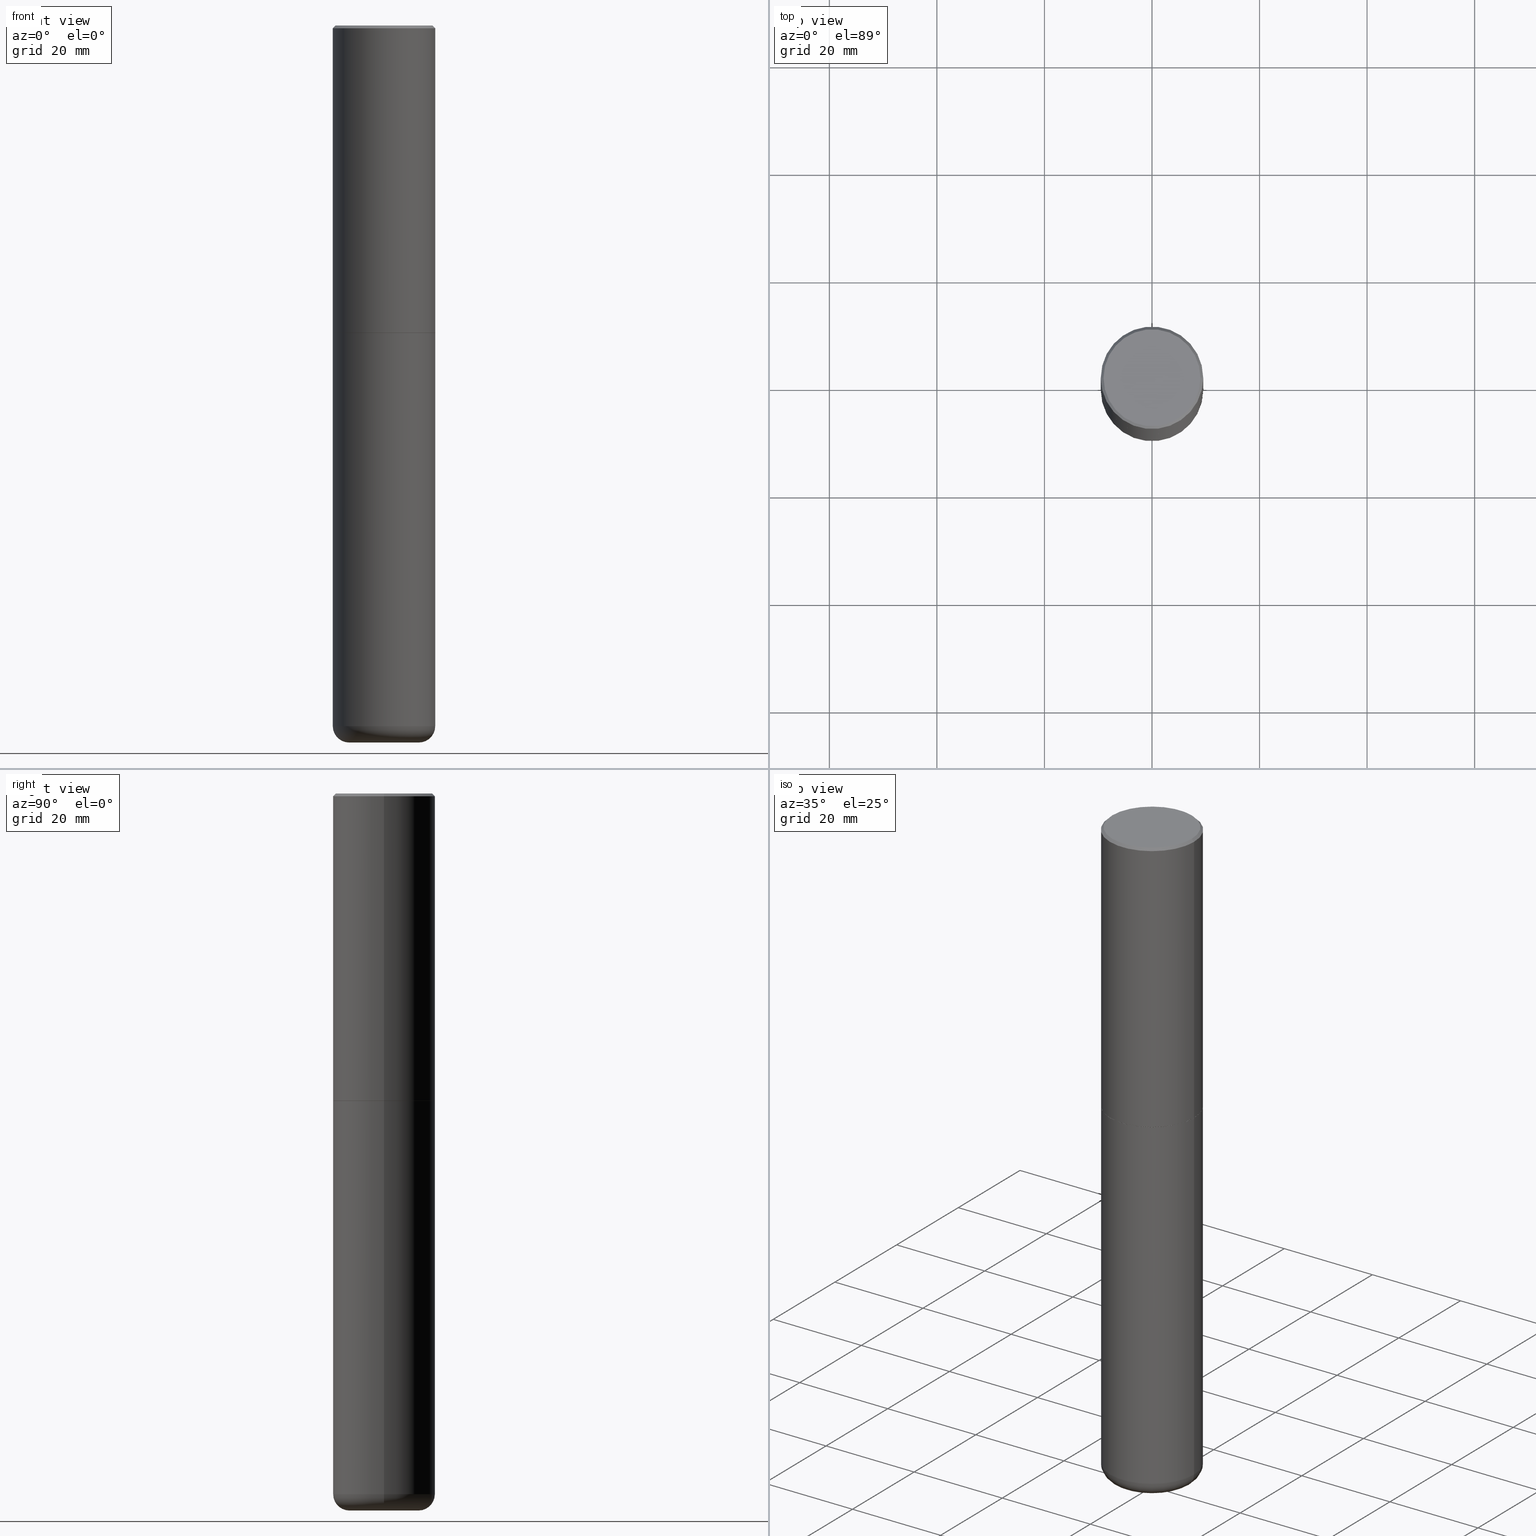
[diagram: canonical four-view strip — front | top / right | iso, engineering-drawing reading convention]
A machine part, canonical four-view strip (front | top / right | iso — engineering-drawing reading convention). The complete STEP part file that produces these views, byte-faithful:
ISO-10303-21;
HEADER;
FILE_DESCRIPTION (( 'STEP AP203' ),
    '1' );
FILE_NAME ('77291.STEP',
    '2024-03-06T16:54:14',
    ( '' ),
    ( '' ),
    'SwSTEP 2.0',
    'SolidWorks 2023',
    '' );
FILE_SCHEMA (( 'CONFIG_CONTROL_DESIGN' ));
ENDSEC;

DATA;
#1 = AXIS2_PLACEMENT_3D ( 'NONE', #104, #31, #357 ) ;
#2 = DIRECTION ( 'NONE',  ( -2.445468806185136597E-29, 3.491481338843145583E-15, 1.000000000000000000 ) ) ;
#3 = CYLINDRICAL_SURFACE ( 'NONE', #14, 0.3750000000000000555 ) ;
#4 = EDGE_CURVE ( 'NONE', #42, #363, #258, .T. ) ;
#5 = CARTESIAN_POINT ( 'NONE',  ( 1.254525497572975083E-28, -1.791129926826533659E-14, -5.129999999999999893 ) ) ;
#6 = ORIENTED_EDGE ( 'NONE', *, *, #225, .F. ) ;
#7 = CIRCLE ( 'NONE', #214, 0.3750000000000001110 ) ;
#8 = EDGE_LOOP ( 'NONE', ( #309, #396, #193, #176 ) ) ;
#9 = EDGE_CURVE ( 'NONE', #363, #81, #156, .T. ) ;
#10 = ORIENTED_EDGE ( 'NONE', *, *, #271, .T. ) ;
#11 = APPROVAL ( #242, 'UNSPECIFIED' ) ;
#12 = CIRCLE ( 'NONE', #119, 0.3549999999999999822 ) ;
#13 = EDGE_LOOP ( 'NONE', ( #304, #316, #275, #41 ) ) ;
#14 = AXIS2_PLACEMENT_3D ( 'NONE', #273, #391, #105 ) ;
#15 = EDGE_CURVE ( 'NONE', #289, #409, #113, .T. ) ;
#16 = DIRECTION ( 'NONE',  ( -2.445468806185136597E-29, 3.491481338843145583E-15, 1.000000000000000000 ) ) ;
#17 = DIRECTION ( 'NONE',  ( 7.105427357601001859E-15, 1.000000000000000000, -3.491481338843145583E-15 ) ) ;
#18 = EDGE_LOOP ( 'NONE', ( #244, #162, #75, #336 ) ) ;
#19 = VECTOR ( 'NONE', #87, 39.37007874015748143 ) ;
#20 = EDGE_CURVE ( 'NONE', #45, #241, #413, .T. ) ;
#21 = TOROIDAL_SURFACE ( 'NONE', #360, 0.2550000000000000044, 0.1199999999999993711 ) ;
#22 = APPROVAL_ROLE ( '' ) ;
#23 = DIRECTION ( 'NONE',  ( -2.445468806185136597E-29, 3.491481338843145583E-15, 1.000000000000000000 ) ) ;
#24 = CYLINDRICAL_SURFACE ( 'NONE', #388, 0.3750000000000002220 ) ;
#25 = ORIENTED_EDGE ( 'NONE', *, *, #280, .F. ) ;
#26 = LENGTH_MEASURE_WITH_UNIT ( LENGTH_MEASURE( 0.02539999999999999897 ), #30 );
#27 = CARTESIAN_POINT ( 'NONE',  ( -0.3750000000000000555, 2.664535259100376091E-15, -1.844600658845589598E-29 ) ) ;
#28 = FACE_OUTER_BOUND ( 'NONE', #77, .T. ) ;
#29 = SECURITY_CLASSIFICATION ( '', '', #158 ) ;
#30 =( LENGTH_UNIT ( ) NAMED_UNIT ( * ) SI_UNIT ( $, .METRE. ) );
#31 = DIRECTION ( 'NONE',  ( -2.445468806185136597E-29, 3.491481338843145583E-15, 1.000000000000000000 ) ) ;
#32 =( NAMED_UNIT ( * ) SI_UNIT ( $, .STERADIAN. ) SOLID_ANGLE_UNIT ( ) );
#33 = CYLINDRICAL_SURFACE ( 'NONE', #39, 0.3750000000000002220 ) ;
#34 = CARTESIAN_POINT ( 'NONE',  ( 4.890937612370294178E-31, -6.982962677686321191E-17, -0.02000000000000008715 ) ) ;
#35 = EDGE_CURVE ( 'NONE', #117, #243, #207, .T. ) ;
#36 = FACE_OUTER_BOUND ( 'NONE', #181, .T. ) ;
#37 = FACE_OUTER_BOUND ( 'NONE', #281, .T. ) ;
#38 = VERTEX_POINT ( 'NONE', #223 ) ;
#39 = AXIS2_PLACEMENT_3D ( 'NONE', #170, #103, #237 ) ;
#40 = APPROVAL ( #61, 'UNSPECIFIED' ) ;
#41 = ORIENTED_EDGE ( 'NONE', *, *, #102, .F. ) ;
#42 = VERTEX_POINT ( 'NONE', #226 ) ;
#43 = EDGE_LOOP ( 'NONE', ( #369, #245 ) ) ;
#44 = EDGE_CURVE ( 'NONE', #306, #81, #92, .T. ) ;
#45 = VERTEX_POINT ( 'NONE', #317 ) ;
#46 = AXIS2_PLACEMENT_3D ( 'NONE', #88, #381, #93 ) ;
#47 = LINE ( 'NONE', #283, #19 ) ;
#48 = CARTESIAN_POINT ( 'NONE',  ( 0.3739999999999999991, -1.046746105385174245E-14, -2.250000000000000444 ) ) ;
#49 = EDGE_CURVE ( 'NONE', #243, #287, #263, .T. ) ;
#50 = CARTESIAN_POINT ( 'NONE',  ( 1.283871123247196489E-28, -1.833027702892651007E-14, -5.249999999999999112 ) ) ;
#51 = PERSON_AND_ORGANIZATION ( #150, #138 ) ;
#52 = ORIENTED_EDGE ( 'NONE', *, *, #271, .F. ) ;
#53 = CIRCLE ( 'NONE', #311, 0.1199999999999993988 ) ;
#54 = CC_DESIGN_DATE_AND_TIME_ASSIGNMENT ( #98, #196, ( #239 ) ) ;
#55 = DIRECTION ( 'NONE',  ( 1.000000000000000000, -6.982962677686260400E-15, 0.000000000000000000 ) ) ;
#56 = CIRCLE ( 'NONE', #101, 0.2550000000000000044 ) ;
#57 = DIRECTION ( 'NONE',  ( -2.445468806185136597E-29, 3.491481338843145583E-15, 1.000000000000000000 ) ) ;
#58 = ORIENTED_EDGE ( 'NONE', *, *, #4, .T. ) ;
#59 =( CONVERSION_BASED_UNIT ( 'INCH', #26 ) LENGTH_UNIT ( ) NAMED_UNIT ( #142 ) );
#60 = CARTESIAN_POINT ( 'NONE',  ( 4.890937612370294178E-31, -6.982962677686321191E-17, -0.02000000000000008715 ) ) ;
#61 = APPROVAL_STATUS ( 'not_yet_approved' ) ;
#62 = DIRECTION ( 'NONE',  ( 1.000000000000000000, -6.982962677686260400E-15, 0.000000000000000000 ) ) ;
#63 = CLOSED_SHELL ( 'NONE', ( #407, #191, #365, #348, #379, #355 ) ) ;
#64 = APPROVAL_PERSON_ORGANIZATION ( #144, #11, #274 ) ;
#65 = CALENDAR_DATE ( 2024, 6, 3 ) ;
#66 = CARTESIAN_POINT ( 'NONE',  ( -0.3749999999999996669, -1.524676400916496405E-14, -5.129999999999999893 ) ) ;
#67 = CARTESIAN_POINT ( 'NONE',  ( 0.3750000000000000555, -2.618611004132350016E-15, 1.828566290923476203E-29 ) ) ;
#68 = FACE_OUTER_BOUND ( 'NONE', #368, .T. ) ;
#69 = ADVANCED_FACE ( 'NONE', ( #346 ), #290, .T. ) ;
#70 = PLANE ( 'NONE',  #268 ) ;
#71 = DIRECTION ( 'NONE',  ( 2.438088387897960049E-29, -3.491481338843145188E-15, -1.000000000000000000 ) ) ;
#72 = AXIS2_PLACEMENT_3D ( 'NONE', #34, #293, #383 ) ;
#73 = AXIS2_PLACEMENT_3D ( 'NONE', #288, #169, #227 ) ;
#74 = ORIENTED_EDGE ( 'NONE', *, *, #397, .F. ) ;
#75 = ORIENTED_EDGE ( 'NONE', *, *, #321, .T. ) ;
#76 = MANIFOLD_SOLID_BREP ( 'Body-Move/Copy2[1]', #63 ) ;
#77 = EDGE_LOOP ( 'NONE', ( #184, #406, #79, #333 ) ) ;
#78 = VECTOR ( 'NONE', #343, 39.37007874015748854 ) ;
#79 = ORIENTED_EDGE ( 'NONE', *, *, #280, .T. ) ;
#80 = ORIENTED_EDGE ( 'NONE', *, *, #321, .F. ) ;
#81 = VERTEX_POINT ( 'NONE', #340 ) ;
#82 = CONICAL_SURFACE ( 'NONE', #325, 0.3750000000000001110, 0.7853981633974477239 ) ;
#83 = CIRCLE ( 'NONE', #72, 0.3750000000000001110 ) ;
#84 = DIRECTION ( 'NONE',  ( -2.445468806185136597E-29, 3.491481338843145583E-15, 1.000000000000000000 ) ) ;
#85 = AXIS2_PLACEMENT_3D ( 'NONE', #106, #328, #295 ) ;
#86 = EDGE_CURVE ( 'NONE', #241, #45, #12, .T. ) ;
#87 = DIRECTION ( 'NONE',  ( -2.445468806185136877E-29, 3.491481338843145188E-15, 1.000000000000000000 ) ) ;
#88 = CARTESIAN_POINT ( 'NONE',  ( 0.000000000000000000, 0.000000000000000000, 0.000000000000000000 ) ) ;
#89 = PERSON_AND_ORGANIZATION ( #150, #138 ) ;
#90 = ORIENTED_EDGE ( 'NONE', *, *, #15, .T. ) ;
#91 = DATE_AND_TIME ( #378, #373 ) ;
#92 = LINE ( 'NONE', #374, #78 ) ;
#93 = DIRECTION ( 'NONE',  ( 1.000000000000000000, -6.982962677686265922E-15, 4.876176775795935793E-29 ) ) ;
#94 = APPLICATION_PROTOCOL_DEFINITION ( 'international standard', 'config_control_design', 1994, #236 ) ;
#95 = DIRECTION ( 'NONE',  ( 1.000000000000000000, -6.982962677686265922E-15, 4.876176775795935793E-29 ) ) ;
#96 = LINE ( 'NONE', #194, #209 ) ;
#97 = EDGE_CURVE ( 'NONE', #38, #159, #7, .T. ) ;
#98 = DATE_AND_TIME ( #384, #394 ) ;
#99 = DATE_AND_TIME ( #224, #109 ) ;
#100 = AXIS2_PLACEMENT_3D ( 'NONE', #370, #260, #314 ) ;
#101 = AXIS2_PLACEMENT_3D ( 'NONE', #344, #372, #55 ) ;
#102 = EDGE_CURVE ( 'NONE', #81, #159, #47, .T. ) ;
#103 = DIRECTION ( 'NONE',  ( -2.445468806185136597E-29, 3.491481338843145583E-15, 1.000000000000000000 ) ) ;
#104 = CARTESIAN_POINT ( 'NONE',  ( 1.254525497572975083E-28, -1.791129926826533659E-14, -5.129999999999999893 ) ) ;
#105 = DIRECTION ( 'NONE',  ( 1.000000000000000000, -6.982962677686265922E-15, 4.876176775795935793E-29 ) ) ;
#106 = CARTESIAN_POINT ( 'NONE',  ( 5.502304813916557343E-29, -7.855833012397078448E-15, -2.250000000000000000 ) ) ;
#107 = AXIS2_PLACEMENT_3D ( 'NONE', #352, #132, #272 ) ;
#108 = APPROVAL_DATE_TIME ( #393, #11 ) ;
#109 = LOCAL_TIME ( 11, 54, 14.00000000000000000, #296 ) ;
#110 = ORIENTED_EDGE ( 'NONE', *, *, #298, .F. ) ;
#111 = ORIENTED_EDGE ( 'NONE', *, *, #335, .T. ) ;
#112 = ORIENTED_EDGE ( 'NONE', *, *, #291, .T. ) ;
#113 = CIRCLE ( 'NONE', #220, 0.3750000000000000555 ) ;
#114 = EDGE_CURVE ( 'NONE', #117, #116, #137, .T. ) ;
#115 =( GEOMETRIC_REPRESENTATION_CONTEXT ( 3 ) GLOBAL_UNCERTAINTY_ASSIGNED_CONTEXT ( ( #270 ) ) GLOBAL_UNIT_ASSIGNED_CONTEXT ( ( #59, #124, #32 ) ) REPRESENTATION_CONTEXT ( 'NONE', 'WORKASPACE' ) );
#116 = VERTEX_POINT ( 'NONE', #265 ) ;
#117 = VERTEX_POINT ( 'NONE', #164 ) ;
#118 = CARTESIAN_POINT ( 'NONE',  ( 4.890937612370294178E-31, -6.982962677686321191E-17, -0.02000000000000008715 ) ) ;
#119 = AXIS2_PLACEMENT_3D ( 'NONE', #157, #84, #401 ) ;
#120 = PRODUCT_DEFINITION_FORMATION_WITH_SPECIFIED_SOURCE ( 'ANY', '', #252, .NOT_KNOWN. ) ;
#121 = DIRECTION ( 'NONE',  ( -2.445468806185136597E-29, 3.491481338843145583E-15, 1.000000000000000000 ) ) ;
#122 = DIRECTION ( 'NONE',  ( 1.000000000000000000, -6.982962677686266711E-15, 4.876176775795935793E-29 ) ) ;
#123 = CARTESIAN_POINT ( 'NONE',  ( 5.499859345110371740E-29, -7.852341531058233864E-15, -2.249000000000000110 ) ) ;
#124 =( NAMED_UNIT ( * ) PLANE_ANGLE_UNIT ( ) SI_UNIT ( $, .RADIAN. ) );
#125 = DIRECTION ( 'NONE',  ( 1.000000000000000000, -6.982962677686267499E-15, 0.000000000000000000 ) ) ;
#126 = CYLINDRICAL_SURFACE ( 'NONE', #46, 0.3750000000000000555 ) ;
#127 = ADVANCED_FACE ( 'NONE', ( #36 ), #178, .T. ) ;
#128 = FACE_OUTER_BOUND ( 'NONE', #18, .T. ) ;
#129 = CIRCLE ( 'NONE', #189, 0.3750000000000002776 ) ;
#130 = PERSON_AND_ORGANIZATION ( #150, #138 ) ;
#131 = DIRECTION ( 'NONE',  ( -2.445468806185136597E-29, 3.491481338843145583E-15, 1.000000000000000000 ) ) ;
#132 = DIRECTION ( 'NONE',  ( 2.445468806185136597E-29, -3.491481338843145583E-15, -1.000000000000000000 ) ) ;
#133 = DIRECTION ( 'NONE',  ( -2.445468806185136597E-29, 3.491481338843145583E-15, 1.000000000000000000 ) ) ;
#134 = EDGE_CURVE ( 'NONE', #159, #38, #83, .T. ) ;
#135 = COORDINATED_UNIVERSAL_TIME_OFFSET ( 5, 0, .BEHIND. ) ;
#136 = DIRECTION ( 'NONE',  ( -2.438088387897960049E-29, 3.491481338843145188E-15, 1.000000000000000000 ) ) ;
#137 = CIRCLE ( 'NONE', #326, 0.2550000000000000044 ) ;
#138 = ORGANIZATION ( 'UNSPECIFIED', 'UNSPECIFIED', '' ) ;
#139 = CALENDAR_DATE ( 2024, 6, 3 ) ;
#140 = LINE ( 'NONE', #411, #165 ) ;
#141 = CARTESIAN_POINT ( 'NONE',  ( 1.254525497572975083E-28, -1.791129926826533659E-14, -5.129999999999999893 ) ) ;
#142 = DIMENSIONAL_EXPONENTS ( 1.000000000000000000, 0.000000000000000000, 0.000000000000000000, 0.000000000000000000, 0.000000000000000000, 0.000000000000000000, 0.000000000000000000 ) ;
#143 = AXIS2_PLACEMENT_3D ( 'NONE', #285, #17, #153 ) ;
#144 = PERSON_AND_ORGANIZATION ( #150, #138 ) ;
#145 = APPROVAL_PERSON_ORGANIZATION ( #415, #161, #163 ) ;
#146 = ORIENTED_EDGE ( 'NONE', *, *, #86, .F. ) ;
#147 = EDGE_LOOP ( 'NONE', ( #112, #218, #334, #25 ) ) ;
#148 = ADVANCED_FACE ( 'NONE', ( #68 ), #70, .F. ) ;
#149 = ORIENTED_EDGE ( 'NONE', *, *, #291, .F. ) ;
#150 = PERSON ( 'UNSPECIFIED', 'UNSPECIFIED', 'UNSPECIFIED', ('UNSPECIFIED'), ('UNSPECIFIED'), ('UNSPECIFIED') ) ;
#151 = AXIS2_PLACEMENT_3D ( 'NONE', #417, #267, #389 ) ;
#152 = APPROVAL_PERSON_ORGANIZATION ( #233, #40, #22 ) ;
#153 = DIRECTION ( 'NONE',  ( -1.000000000000000000, 7.105427357600993970E-15, 0.000000000000000000 ) ) ;
#154 = CARTESIAN_POINT ( 'NONE',  ( 5.499859345110371740E-29, -7.852341531058233864E-15, -2.249000000000000110 ) ) ;
#155 = CARTESIAN_POINT ( 'NONE',  ( 1.254525497572975083E-28, -1.791129926826533659E-14, -5.129999999999999893 ) ) ;
#156 = CIRCLE ( 'NONE', #310, 0.3750000000000002776 ) ;
#157 = CARTESIAN_POINT ( 'NONE',  ( -1.565777121502829671E-45, 2.235514755570671047E-31, 6.402768735150616610E-17 ) ) ;
#158 = SECURITY_CLASSIFICATION_LEVEL ( 'unclassified' ) ;
#159 = VERTEX_POINT ( 'NONE', #198 ) ;
#160 = FACE_OUTER_BOUND ( 'NONE', #190, .T. ) ;
#161 = APPROVAL ( #385, 'UNSPECIFIED' ) ;
#162 = ORIENTED_EDGE ( 'NONE', *, *, #20, .F. ) ;
#163 = APPROVAL_ROLE ( '' ) ;
#164 = CARTESIAN_POINT ( 'NONE',  ( -0.2550000000000000044, -1.588257853095161128E-14, -5.249999999999999112 ) ) ;
#165 = VECTOR ( 'NONE', #390, 39.37007874015748143 ) ;
#166 = CC_DESIGN_APPROVAL ( #40, ( #120 ) ) ;
#167 = DIRECTION ( 'NONE',  ( 2.445468806185136597E-29, -3.491481338843145583E-15, -1.000000000000000000 ) ) ;
#168 = ADVANCED_FACE ( 'NONE', ( #327 ), #173, .T. ) ;
#169 = DIRECTION ( 'NONE',  ( 0.000000000000000000, 0.000000000000000000, 1.000000000000000000 ) ) ;
#170 = CARTESIAN_POINT ( 'NONE',  ( 0.000000000000000000, 0.000000000000000000, 0.000000000000000000 ) ) ;
#171 = DIRECTION ( 'NONE',  ( -2.445468806185136877E-29, 3.491481338843145188E-15, 1.000000000000000000 ) ) ;
#172 = DIRECTION ( 'NONE',  ( 2.438088387897960049E-29, -3.491481338843145188E-15, -1.000000000000000000 ) ) ;
#173 = CONICAL_SURFACE ( 'NONE', #331, 0.3739999999999999991, 0.7853981633974141952 ) ;
#174 = DIRECTION ( 'NONE',  ( 1.000000000000000000, -6.982962677686265133E-15, 0.000000000000000000 ) ) ;
#175 = EDGE_CURVE ( 'NONE', #241, #159, #140, .T. ) ;
#176 = ORIENTED_EDGE ( 'NONE', *, *, #335, .F. ) ;
#177 = EDGE_LOOP ( 'NONE', ( #399, #277, #364, #361 ) ) ;
#178 = CONICAL_SURFACE ( 'NONE', #107, 0.3750000000000001110, 0.7853981633974477239 ) ;
#179 = DIRECTION ( 'NONE',  ( -1.000000000000000000, 6.982962677686265922E-15, -4.876176775795935793E-29 ) ) ;
#180 = ORIENTED_EDGE ( 'NONE', *, *, #102, .T. ) ;
#181 = EDGE_LOOP ( 'NONE', ( #146, #182, #307, #80 ) ) ;
#182 = ORIENTED_EDGE ( 'NONE', *, *, #175, .T. ) ;
#183 = CIRCLE ( 'NONE', #228, 0.3750000000000000555 ) ;
#184 = ORIENTED_EDGE ( 'NONE', *, *, #35, .F. ) ;
#185 = ORIENTED_EDGE ( 'NONE', *, *, #114, .F. ) ;
#186 = CARTESIAN_POINT ( 'NONE',  ( 0.000000000000000000, 0.000000000000000000, 0.000000000000000000 ) ) ;
#187 = DIRECTION ( 'NONE',  ( -2.445468806185136597E-29, 3.491481338843145583E-15, 1.000000000000000000 ) ) ;
#188 = AXIS2_PLACEMENT_3D ( 'NONE', #155, #23, #229 ) ;
#189 = AXIS2_PLACEMENT_3D ( 'NONE', #154, #318, #402 ) ;
#190 = EDGE_LOOP ( 'NONE', ( #253, #312, #180, #403 ) ) ;
#191 = ADVANCED_FACE ( 'NONE', ( #350 ), #366, .T. ) ;
#192 = APPLICATION_PROTOCOL_DEFINITION ( 'international standard', 'config_control_design', 1994, #256 ) ;
#193 = ORIENTED_EDGE ( 'NONE', *, *, #397, .T. ) ;
#194 = CARTESIAN_POINT ( 'NONE',  ( -0.3750000000000001110, 2.548781377355487113E-15, -0.02000000000000008715 ) ) ;
#195 = CC_DESIGN_PERSON_AND_ORGANIZATION_ASSIGNMENT ( #130, #354, ( #239 ) ) ;
#196 = DATE_TIME_ROLE ( 'creation_date' ) ;
#197 = DIRECTION ( 'NONE',  ( -1.000000000000000000, 6.982962677686265922E-15, 0.000000000000000000 ) ) ;
#198 = CARTESIAN_POINT ( 'NONE',  ( 0.3750000000000001110, -2.642516375941188423E-15, -0.02000000000000008715 ) ) ;
#199 = LOCAL_TIME ( 11, 54, 14.00000000000000000, #135 ) ;
#200 = PLANE ( 'NONE',  #85 ) ;
#201 = DATE_AND_TIME ( #65, #199 ) ;
#202 = FACE_OUTER_BOUND ( 'NONE', #13, .T. ) ;
#203 = LINE ( 'NONE', #206, #414 ) ;
#204 = PLANE ( 'NONE',  #234 ) ;
#205 = DIRECTION ( 'NONE',  ( 1.000000000000000000, -6.982962677686261189E-15, 0.000000000000000000 ) ) ;
#206 = CARTESIAN_POINT ( 'NONE',  ( -0.3750000000000002220, 2.664535259100377275E-15, -1.844600658845590719E-29 ) ) ;
#207 = CIRCLE ( 'NONE', #143, 0.1199999999999993988 ) ;
#208 = ADVANCED_FACE ( 'NONE', ( #128 ), #82, .T. ) ;
#209 = VECTOR ( 'NONE', #410, 39.37007874015748143 ) ;
#210 = ORIENTED_EDGE ( 'NONE', *, *, #212, .T. ) ;
#211 = DATE_TIME_ROLE ( 'classification_date' ) ;
#212 = EDGE_CURVE ( 'NONE', #243, #409, #323, .T. ) ;
#213 = MANIFOLD_SOLID_BREP ( 'Body-Move/Copy2[2]', #279 ) ;
#214 = AXIS2_PLACEMENT_3D ( 'NONE', #118, #250, #371 ) ;
#215 = LOCAL_TIME ( 11, 54, 14.00000000000000000, #332 ) ;
#216 = ORIENTED_EDGE ( 'NONE', *, *, #362, .T. ) ;
#217 = CC_DESIGN_PERSON_AND_ORGANIZATION_ASSIGNMENT ( #51, #408, ( #29 ) ) ;
#218 = ORIENTED_EDGE ( 'NONE', *, *, #35, .T. ) ;
#219 = DIRECTION ( 'NONE',  ( -2.445468806185136597E-29, 3.491481338843145583E-15, 1.000000000000000000 ) ) ;
#220 = AXIS2_PLACEMENT_3D ( 'NONE', #380, #121, #339 ) ;
#221 = AXIS2_PLACEMENT_3D ( 'NONE', #238, #71, #299 ) ;
#222 = CARTESIAN_POINT ( 'NONE',  ( -0.3739999999999999991, -5.198403180654303760E-15, -2.250000000000000444 ) ) ;
#223 = CARTESIAN_POINT ( 'NONE',  ( -0.3750000000000001110, 2.548781377355487113E-15, -0.02000000000000008715 ) ) ;
#224 = CALENDAR_DATE ( 2024, 6, 3 ) ;
#225 = EDGE_CURVE ( 'NONE', #42, #306, #404, .T. ) ;
#226 = CARTESIAN_POINT ( 'NONE',  ( -0.3739999999999999991, -5.193104726306080569E-15, -2.250000000000000444 ) ) ;
#227 = DIRECTION ( 'NONE',  ( 1.000000000000000000, 0.000000000000000000, 0.000000000000000000 ) ) ;
#228 = AXIS2_PLACEMENT_3D ( 'NONE', #5, #133, #205 ) ;
#229 = DIRECTION ( 'NONE',  ( 1.000000000000000000, -6.982962677686261189E-15, 0.000000000000000000 ) ) ;
#230 = FACE_OUTER_BOUND ( 'NONE', #337, .T. ) ;
#231 = COORDINATED_UNIVERSAL_TIME_OFFSET ( 5, 0, .BEHIND. ) ;
#232 = DIRECTION ( 'NONE',  ( -2.445468806185136597E-29, 3.491481338843145583E-15, 1.000000000000000000 ) ) ;
#233 = PERSON_AND_ORGANIZATION ( #150, #138 ) ;
#234 = AXIS2_PLACEMENT_3D ( 'NONE', #330, #172, #179 ) ;
#235 = DIRECTION ( 'NONE',  ( 1.000000000000000000, -6.982962677686263555E-15, 4.883557194083111219E-29 ) ) ;
#236 = APPLICATION_CONTEXT ( 'configuration controlled 3d designs of mechanical parts and assemblies' ) ;
#237 = DIRECTION ( 'NONE',  ( 1.000000000000000000, -6.982962677686266711E-15, 4.876176775795935793E-29 ) ) ;
#238 = CARTESIAN_POINT ( 'NONE',  ( 2.854868159318815822E-28, 4.167294683602726042E-15, -5.249999999999999112 ) ) ;
#239 = PRODUCT_DEFINITION ( 'UNKNOWN', '', #120, #400 ) ;
#240 = FACE_OUTER_BOUND ( 'NONE', #377, .T. ) ;
#241 = VERTEX_POINT ( 'NONE', #386 ) ;
#242 = APPROVAL_STATUS ( 'not_yet_approved' ) ;
#243 = VERTEX_POINT ( 'NONE', #66 ) ;
#244 = ORIENTED_EDGE ( 'NONE', *, *, #175, .F. ) ;
#245 = ORIENTED_EDGE ( 'NONE', *, *, #86, .T. ) ;
#246 = AXIS2_PLACEMENT_3D ( 'NONE', #286, #57, #300 ) ;
#247 = CC_DESIGN_APPROVAL ( #11, ( #29 ) ) ;
#248 = DIRECTION ( 'NONE',  ( -0.7071067811865232589, 7.493145998870265808E-15, 0.7071067811865715536 ) ) ;
#249 = ADVANCED_FACE ( 'NONE', ( #202 ), #33, .T. ) ;
#250 = DIRECTION ( 'NONE',  ( -2.445468806185136597E-29, 3.491481338843145583E-15, 1.000000000000000000 ) ) ;
#251 = CARTESIAN_POINT ( 'NONE',  ( 0.3750000000000000555, -1.047444401652942689E-14, -2.250000000000000000 ) ) ;
#252 = PRODUCT ( '77291', '77291', '', ( #345 ) ) ;
#253 = ORIENTED_EDGE ( 'NONE', *, *, #392, .F. ) ;
#254 = CARTESIAN_POINT ( 'NONE',  ( 5.502304813916557343E-29, -7.855833012397078448E-15, -2.250000000000000000 ) ) ;
#255 = CARTESIAN_POINT ( 'NONE',  ( 0.2550000000000000044, -1.969195475107533334E-14, -5.129999999999999893 ) ) ;
#256 = APPLICATION_CONTEXT ( 'configuration controlled 3d designs of mechanical parts and assemblies' ) ;
#257 = ADVANCED_FACE ( 'NONE', ( #359 ), #204, .F. ) ;
#258 = LINE ( 'NONE', #222, #303 ) ;
#259 = COORDINATED_UNIVERSAL_TIME_OFFSET ( 5, 0, .BEHIND. ) ;
#260 = DIRECTION ( 'NONE',  ( -2.445468806185136597E-29, 3.491481338843145583E-15, 1.000000000000000000 ) ) ;
#261 = DIRECTION ( 'NONE',  ( 1.000000000000000000, -6.982962677686271444E-15, 0.000000000000000000 ) ) ;
#262 = PERSON_AND_ORGANIZATION_ROLE ( 'design_owner' ) ;
#263 = CIRCLE ( 'NONE', #188, 0.3750000000000000555 ) ;
#264 = CIRCLE ( 'NONE', #356, 0.3750000000000000555 ) ;
#265 = CARTESIAN_POINT ( 'NONE',  ( 0.2550000000000000044, -2.011093251173650682E-14, -5.249999999999999112 ) ) ;
#266 = PERSON_AND_ORGANIZATION ( #150, #138 ) ;
#267 = DIRECTION ( 'NONE',  ( -2.445468806185136597E-29, 3.491481338843145583E-15, 1.000000000000000000 ) ) ;
#268 = AXIS2_PLACEMENT_3D ( 'NONE', #418, #136, #95 ) ;
#269 = CARTESIAN_POINT ( 'NONE',  ( 5.502304813916558464E-29, -7.855833012397078448E-15, -2.250000000000000444 ) ) ;
#270 = UNCERTAINTY_MEASURE_WITH_UNIT (LENGTH_MEASURE( 1.000000000000000082E-05 ), #59, 'distance_accuracy_value', 'NONE');
#271 = EDGE_CURVE ( 'NONE', #306, #42, #284, .T. ) ;
#272 = DIRECTION ( 'NONE',  ( -1.000000000000000000, 6.982962677686265922E-15, 0.000000000000000000 ) ) ;
#273 = CARTESIAN_POINT ( 'NONE',  ( 0.000000000000000000, 0.000000000000000000, 0.000000000000000000 ) ) ;
#274 = APPROVAL_ROLE ( '' ) ;
#275 = ORIENTED_EDGE ( 'NONE', *, *, #134, .F. ) ;
#276 = SHAPE_DEFINITION_REPRESENTATION ( #305, #301 ) ;
#277 = ORIENTED_EDGE ( 'NONE', *, *, #225, .T. ) ;
#278 = ORIENTED_EDGE ( 'NONE', *, *, #44, .F. ) ;
#279 = CLOSED_SHELL ( 'NONE', ( #69, #249, #127, #208, #313, #168, #148, #257 ) ) ;
#280 = EDGE_CURVE ( 'NONE', #116, #287, #53, .T. ) ;
#281 = EDGE_LOOP ( 'NONE', ( #90, #111 ) ) ;
#282 = DIRECTION ( 'NONE',  ( 1.000000000000000000, -6.982962677686265133E-15, 0.000000000000000000 ) ) ;
#283 = CARTESIAN_POINT ( 'NONE',  ( 0.3750000000000002220, -2.618611004132351594E-15, 1.828566290923477043E-29 ) ) ;
#284 = CIRCLE ( 'NONE', #246, 0.3739999999999999991 ) ;
#285 = CARTESIAN_POINT ( 'NONE',  ( -0.2550000000000000044, -1.609941529207708187E-14, -5.129999999999999893 ) ) ;
#286 = CARTESIAN_POINT ( 'NONE',  ( 5.502304813916558464E-29, -7.855833012397078448E-15, -2.250000000000000444 ) ) ;
#287 = VERTEX_POINT ( 'NONE', #315 ) ;
#288 = CARTESIAN_POINT ( 'NONE',  ( 0.000000000000000000, 0.000000000000000000, 0.000000000000000000 ) ) ;
#289 = VERTEX_POINT ( 'NONE', #251 ) ;
#290 = CONICAL_SURFACE ( 'NONE', #387, 0.3739999999999999991, 0.7853981633974141952 ) ;
#291 = EDGE_CURVE ( 'NONE', #116, #117, #56, .T. ) ;
#292 = VECTOR ( 'NONE', #171, 39.37007874015748143 ) ;
#293 = DIRECTION ( 'NONE',  ( -2.445468806185136597E-29, 3.491481338843145583E-15, 1.000000000000000000 ) ) ;
#294 = DIRECTION ( 'NONE',  ( -2.445468806185136877E-29, 3.491481338843145188E-15, 1.000000000000000000 ) ) ;
#295 = DIRECTION ( 'NONE',  ( -1.000000000000000000, 6.982962677686265922E-15, -4.876176775795935793E-29 ) ) ;
#296 = COORDINATED_UNIVERSAL_TIME_OFFSET ( 5, 0, .BEHIND. ) ;
#297 = CC_DESIGN_PERSON_AND_ORGANIZATION_ASSIGNMENT ( #89, #341, ( #120 ) ) ;
#298 = EDGE_CURVE ( 'NONE', #81, #363, #129, .T. ) ;
#299 = DIRECTION ( 'NONE',  ( -1.000000000000000000, 6.982962677686265922E-15, -4.876176775795935793E-29 ) ) ;
#300 = DIRECTION ( 'NONE',  ( 1.000000000000000000, -6.982962677686265133E-15, 0.000000000000000000 ) ) ;
#301 = ADVANCED_BREP_SHAPE_REPRESENTATION ( '77291', ( #76, #213, #73 ), #115 ) ;
#302 = EDGE_LOOP ( 'NONE', ( #10, #58, #110, #278 ) ) ;
#303 = VECTOR ( 'NONE', #248, 39.37007874015748854 ) ;
#304 = ORIENTED_EDGE ( 'NONE', *, *, #298, .T. ) ;
#305 = PRODUCT_DEFINITION_SHAPE ( 'NONE', 'NONE',  #239 ) ;
#306 = VERTEX_POINT ( 'NONE', #48 ) ;
#307 = ORIENTED_EDGE ( 'NONE', *, *, #134, .T. ) ;
#308 = CC_DESIGN_PERSON_AND_ORGANIZATION_ASSIGNMENT ( #266, #262, ( #252 ) ) ;
#309 = ORIENTED_EDGE ( 'NONE', *, *, #212, .F. ) ;
#310 = AXIS2_PLACEMENT_3D ( 'NONE', #123, #16, #125 ) ;
#311 = AXIS2_PLACEMENT_3D ( 'NONE', #255, #412, #261 ) ;
#312 = ORIENTED_EDGE ( 'NONE', *, *, #9, .T. ) ;
#313 = ADVANCED_FACE ( 'NONE', ( #160 ), #24, .T. ) ;
#314 = DIRECTION ( 'NONE',  ( 1.000000000000000000, -6.982962677686265922E-15, 4.876231632511988183E-29 ) ) ;
#315 = CARTESIAN_POINT ( 'NONE',  ( 0.3749999999999996669, -2.052991027239768345E-14, -5.129999999999999893 ) ) ;
#316 = ORIENTED_EDGE ( 'NONE', *, *, #392, .T. ) ;
#317 = CARTESIAN_POINT ( 'NONE',  ( -0.3549999999999999822, 2.513866563967055464E-15, 6.402768735148871255E-17 ) ) ;
#318 = DIRECTION ( 'NONE',  ( -2.445468806185136597E-29, 3.491481338843145583E-15, 1.000000000000000000 ) ) ;
#319 = CARTESIAN_POINT ( 'NONE',  ( 5.502304813916558464E-29, -7.855833012397078448E-15, -2.250000000000000444 ) ) ;
#320 = FACE_OUTER_BOUND ( 'NONE', #8, .T. ) ;
#321 = EDGE_CURVE ( 'NONE', #45, #38, #96, .T. ) ;
#322 = APPROVAL_DATE_TIME ( #99, #161 ) ;
#323 = LINE ( 'NONE', #27, #398 ) ;
#324 = CARTESIAN_POINT ( 'NONE',  ( -0.3750000000000002776, -1.296550319817170517E-15, -2.249000000000000110 ) ) ;
#325 = AXIS2_PLACEMENT_3D ( 'NONE', #60, #167, #197 ) ;
#326 = AXIS2_PLACEMENT_3D ( 'NONE', #50, #187, #62 ) ;
#327 = FACE_OUTER_BOUND ( 'NONE', #177, .T. ) ;
#328 = DIRECTION ( 'NONE',  ( 2.438088387897960049E-29, -3.491481338843145188E-15, -1.000000000000000000 ) ) ;
#329 = DIRECTION ( 'NONE',  ( -2.445468806185136877E-29, 3.491481338843145188E-15, 1.000000000000000000 ) ) ;
#330 = CARTESIAN_POINT ( 'NONE',  ( 2.478951750578624209E-15, 0.3549999999999999822, -1.207462031613563440E-15 ) ) ;
#331 = AXIS2_PLACEMENT_3D ( 'NONE', #269, #2, #174 ) ;
#332 = COORDINATED_UNIVERSAL_TIME_OFFSET ( 5, 0, .BEHIND. ) ;
#333 = ORIENTED_EDGE ( 'NONE', *, *, #49, .F. ) ;
#334 = ORIENTED_EDGE ( 'NONE', *, *, #362, .F. ) ;
#335 = EDGE_CURVE ( 'NONE', #409, #289, #264, .T. ) ;
#336 = ORIENTED_EDGE ( 'NONE', *, *, #97, .T. ) ;
#337 = EDGE_LOOP ( 'NONE', ( #149, #185 ) ) ;
#338 = CC_DESIGN_APPROVAL ( #161, ( #239 ) ) ;
#339 = DIRECTION ( 'NONE',  ( 1.000000000000000000, -6.982962677686264344E-15, 0.000000000000000000 ) ) ;
#340 = CARTESIAN_POINT ( 'NONE',  ( 0.3750000000000002776, -1.047095253519058704E-14, -2.249000000000000110 ) ) ;
#341 = PERSON_AND_ORGANIZATION_ROLE ( 'design_supplier' ) ;
#342 = PRODUCT_RELATED_PRODUCT_CATEGORY ( 'detail', '', ( #252 ) ) ;
#343 = DIRECTION ( 'NONE',  ( 0.7071067811865232589, -2.468850131082003836E-15, 0.7071067811865715536 ) ) ;
#344 = CARTESIAN_POINT ( 'NONE',  ( 1.283871123247196489E-28, -1.833027702892651007E-14, -5.249999999999999112 ) ) ;
#345 = MECHANICAL_CONTEXT ( 'NONE', #256, 'mechanical' ) ;
#346 = FACE_OUTER_BOUND ( 'NONE', #302, .T. ) ;
#347 = PLANE ( 'NONE',  #221 ) ;
#348 = ADVANCED_FACE ( 'NONE', ( #320 ), #126, .T. ) ;
#349 = PERSON_AND_ORGANIZATION ( #150, #138 ) ;
#350 = FACE_OUTER_BOUND ( 'NONE', #147, .T. ) ;
#351 = PERSON_AND_ORGANIZATION_ROLE ( 'creator' ) ;
#352 = CARTESIAN_POINT ( 'NONE',  ( 4.890937612370294178E-31, -6.982962677686321191E-17, -0.02000000000000008715 ) ) ;
#353 = CC_DESIGN_DATE_AND_TIME_ASSIGNMENT ( #91, #211, ( #29 ) ) ;
#354 = PERSON_AND_ORGANIZATION_ROLE ( 'creator' ) ;
#355 = ADVANCED_FACE ( 'NONE', ( #230 ), #347, .T. ) ;
#356 = AXIS2_PLACEMENT_3D ( 'NONE', #254, #232, #375 ) ;
#357 = DIRECTION ( 'NONE',  ( 1.000000000000000000, -6.982962677686263555E-15, 4.883557194083111219E-29 ) ) ;
#358 = LINE ( 'NONE', #67, #292 ) ;
#359 = FACE_OUTER_BOUND ( 'NONE', #43, .T. ) ;
#360 = AXIS2_PLACEMENT_3D ( 'NONE', #141, #131, #235 ) ;
#361 = ORIENTED_EDGE ( 'NONE', *, *, #9, .F. ) ;
#362 = EDGE_CURVE ( 'NONE', #287, #243, #183, .T. ) ;
#363 = VERTEX_POINT ( 'NONE', #324 ) ;
#364 = ORIENTED_EDGE ( 'NONE', *, *, #44, .T. ) ;
#365 = ADVANCED_FACE ( 'NONE', ( #37 ), #200, .F. ) ;
#366 = TOROIDAL_SURFACE ( 'NONE', #1, 0.2550000000000000044, 0.1199999999999993711 ) ;
#367 = CARTESIAN_POINT ( 'NONE',  ( -0.3750000000000000555, -1.021903088123083182E-14, -2.250000000000000000 ) ) ;
#368 = EDGE_LOOP ( 'NONE', ( #52, #6 ) ) ;
#369 = ORIENTED_EDGE ( 'NONE', *, *, #20, .T. ) ;
#370 = CARTESIAN_POINT ( 'NONE',  ( -1.565777121502829671E-45, 2.235514755570671047E-31, 6.402768735150616610E-17 ) ) ;
#371 = DIRECTION ( 'NONE',  ( 1.000000000000000000, -6.982962677686265922E-15, 0.000000000000000000 ) ) ;
#372 = DIRECTION ( 'NONE',  ( -2.445468806185136597E-29, 3.491481338843145583E-15, 1.000000000000000000 ) ) ;
#373 = LOCAL_TIME ( 11, 54, 14.00000000000000000, #259 ) ;
#374 = CARTESIAN_POINT ( 'NONE',  ( 0.3739999999999999991, -1.046746105385174245E-14, -2.250000000000000444 ) ) ;
#375 = DIRECTION ( 'NONE',  ( 1.000000000000000000, -6.982962677686264344E-15, 0.000000000000000000 ) ) ;
#376 = APPROVAL_DATE_TIME ( #201, #40 ) ;
#377 = EDGE_LOOP ( 'NONE', ( #216, #210, #395, #74 ) ) ;
#378 = CALENDAR_DATE ( 2024, 6, 3 ) ;
#379 = ADVANCED_FACE ( 'NONE', ( #28 ), #21, .T. ) ;
#380 = CARTESIAN_POINT ( 'NONE',  ( 5.502304813916557343E-29, -7.855833012397078448E-15, -2.250000000000000000 ) ) ;
#381 = DIRECTION ( 'NONE',  ( -2.445468806185136597E-29, 3.491481338843145583E-15, 1.000000000000000000 ) ) ;
#382 = CC_DESIGN_SECURITY_CLASSIFICATION ( #29, ( #120 ) ) ;
#383 = DIRECTION ( 'NONE',  ( 1.000000000000000000, -6.982962677686265922E-15, 0.000000000000000000 ) ) ;
#384 = CALENDAR_DATE ( 2024, 6, 3 ) ;
#385 = APPROVAL_STATUS ( 'not_yet_approved' ) ;
#386 = CARTESIAN_POINT ( 'NONE',  ( 0.3549999999999999822, -2.538996582575041048E-15, 6.402768735152371826E-17 ) ) ;
#387 = AXIS2_PLACEMENT_3D ( 'NONE', #319, #219, #282 ) ;
#388 = AXIS2_PLACEMENT_3D ( 'NONE', #186, #405, #122 ) ;
#389 = DIRECTION ( 'NONE',  ( 1.000000000000000000, -6.982962677686265133E-15, 0.000000000000000000 ) ) ;
#390 = DIRECTION ( 'NONE',  ( 0.7071067811865471286, -7.319954787623254468E-15, -0.7071067811865479058 ) ) ;
#391 = DIRECTION ( 'NONE',  ( -2.445468806185136597E-29, 3.491481338843145583E-15, 1.000000000000000000 ) ) ;
#392 = EDGE_CURVE ( 'NONE', #363, #38, #203, .T. ) ;
#393 = DATE_AND_TIME ( #139, #215 ) ;
#394 = LOCAL_TIME ( 11, 54, 14.00000000000000000, #231 ) ;
#395 = ORIENTED_EDGE ( 'NONE', *, *, #15, .F. ) ;
#396 = ORIENTED_EDGE ( 'NONE', *, *, #49, .T. ) ;
#397 = EDGE_CURVE ( 'NONE', #287, #289, #358, .T. ) ;
#398 = VECTOR ( 'NONE', #294, 39.37007874015748143 ) ;
#399 = ORIENTED_EDGE ( 'NONE', *, *, #4, .F. ) ;
#400 = DESIGN_CONTEXT ( 'detailed design', #236, 'design' ) ;
#401 = DIRECTION ( 'NONE',  ( 1.000000000000000000, -6.982962677686265922E-15, 4.876231632511988183E-29 ) ) ;
#402 = DIRECTION ( 'NONE',  ( 1.000000000000000000, -6.982962677686267499E-15, 0.000000000000000000 ) ) ;
#403 = ORIENTED_EDGE ( 'NONE', *, *, #97, .F. ) ;
#404 = CIRCLE ( 'NONE', #151, 0.3739999999999999991 ) ;
#405 = DIRECTION ( 'NONE',  ( -2.445468806185136597E-29, 3.491481338843145583E-15, 1.000000000000000000 ) ) ;
#406 = ORIENTED_EDGE ( 'NONE', *, *, #114, .T. ) ;
#407 = ADVANCED_FACE ( 'NONE', ( #240 ), #3, .T. ) ;
#408 = PERSON_AND_ORGANIZATION_ROLE ( 'classification_officer' ) ;
#409 = VERTEX_POINT ( 'NONE', #367 ) ;
#410 = DIRECTION ( 'NONE',  ( -0.7071067811865471286, 2.468850131082252722E-15, -0.7071067811865479058 ) ) ;
#411 = CARTESIAN_POINT ( 'NONE',  ( 0.3750000000000001110, -2.642516375941188423E-15, -0.02000000000000008715 ) ) ;
#412 = DIRECTION ( 'NONE',  ( -6.982962677686266711E-15, -1.000000000000000000, 3.491481338843145583E-15 ) ) ;
#413 = CIRCLE ( 'NONE', #100, 0.3549999999999999822 ) ;
#414 = VECTOR ( 'NONE', #329, 39.37007874015748143 ) ;
#415 = PERSON_AND_ORGANIZATION ( #150, #138 ) ;
#416 = CC_DESIGN_PERSON_AND_ORGANIZATION_ASSIGNMENT ( #349, #351, ( #120 ) ) ;
#417 = CARTESIAN_POINT ( 'NONE',  ( 5.502304813916558464E-29, -7.855833012397078448E-15, -2.250000000000000444 ) ) ;
#418 = CARTESIAN_POINT ( 'NONE',  ( 5.502304813916558464E-29, -7.855833012397078448E-15, -2.250000000000000444 ) ) ;
ENDSEC;
END-ISO-10303-21;
